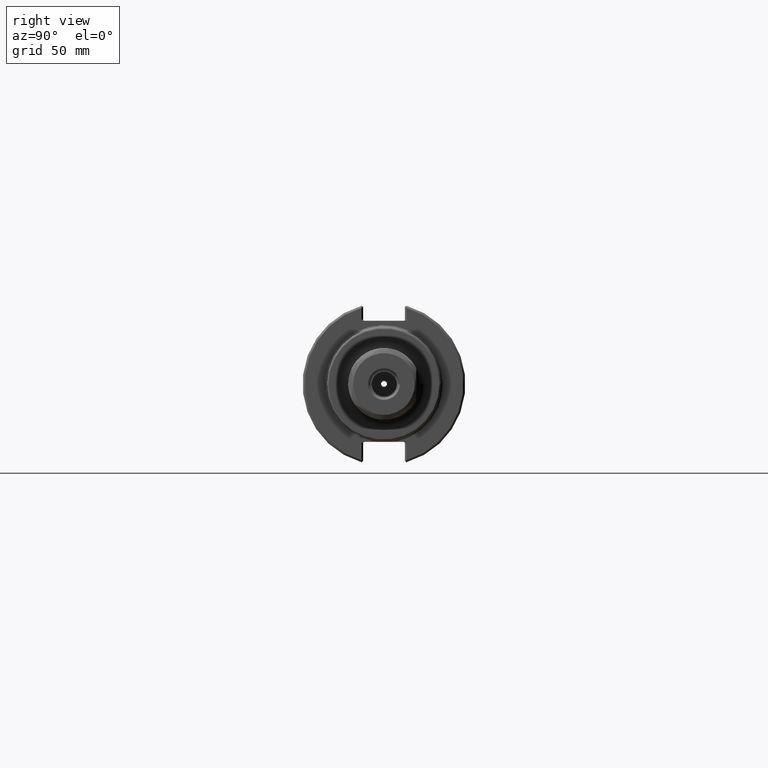
[diagram: clean part render]
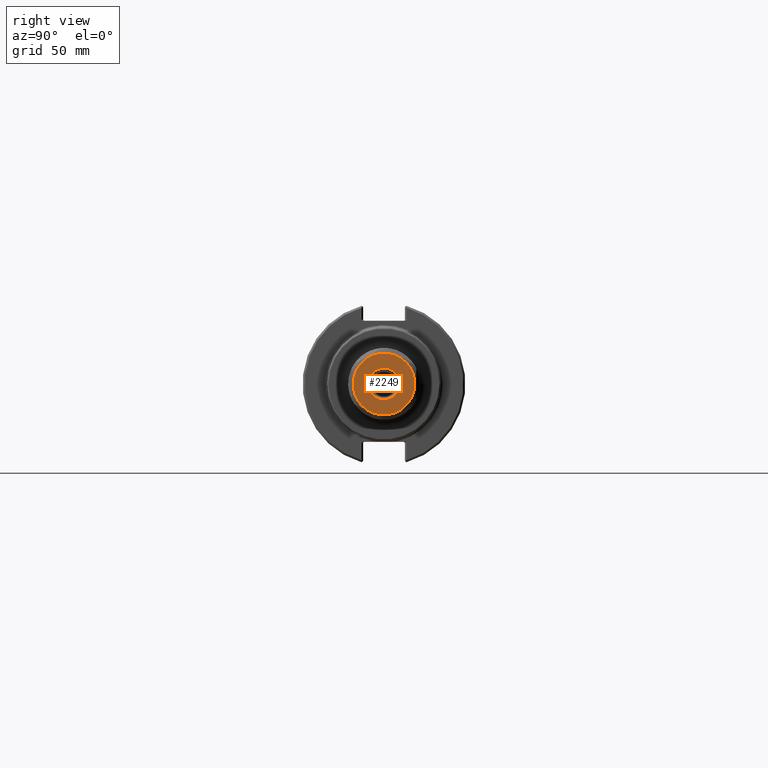
[diagram: same view with one face highlighted and labeled with its STEP entity id]
A machine part, right view. The second image highlights one B-rep face of the part: STEP entity #2249.
In plain terms, the highlighted planar face has unit normal (1, -0, 0).
Its self-contained STEP definition (entity closure, byte-faithful):
#410=PLANE('',#2498);
#504=FACE_BOUND('',#818,.T.);
#635=FACE_OUTER_BOUND('',#817,.T.);
#817=EDGE_LOOP('',(#1956));
#818=EDGE_LOOP('',(#1957));
#919=CIRCLE('',#2479,12.0427825874472);
#927=CIRCLE('',#2497,6.2);
#1114=VERTEX_POINT('',#3940);
#1122=VERTEX_POINT('',#3966);
#1397=EDGE_CURVE('',#1114,#1114,#919,.T.);
#1405=EDGE_CURVE('',#1122,#1122,#927,.T.);
#1956=ORIENTED_EDGE('',*,*,#1397,.F.);
#1957=ORIENTED_EDGE('',*,*,#1405,.T.);
#2249=ADVANCED_FACE('',(#635,#504),#410,.T.);
#2479=AXIS2_PLACEMENT_3D('',#3941,#3053,#3054);
#2497=AXIS2_PLACEMENT_3D('',#3967,#3089,#3090);
#2498=AXIS2_PLACEMENT_3D('',#3968,#3091,#3092);
#3053=DIRECTION('center_axis',(1.,0.,0.));
#3054=DIRECTION('ref_axis',(5.76530977291351E-18,1.,0.));
#3089=DIRECTION('center_axis',(1.,0.,0.));
#3090=DIRECTION('ref_axis',(5.76530977291351E-18,1.,0.));
#3091=DIRECTION('center_axis',(-1.,0.,0.));
#3092=DIRECTION('ref_axis',(0.,0.,1.));
#3940=CARTESIAN_POINT('',(-0.297484993072962,12.0427825874472,0.));
#3941=CARTESIAN_POINT('Origin',(-0.297484993072962,0.,0.));
#3966=CARTESIAN_POINT('',(-0.297484993072959,6.2,0.));
#3967=CARTESIAN_POINT('Origin',(-0.297484993072959,0.,0.));
#3968=CARTESIAN_POINT('Origin',(-0.29748499307296,9.12139129372358,0.));